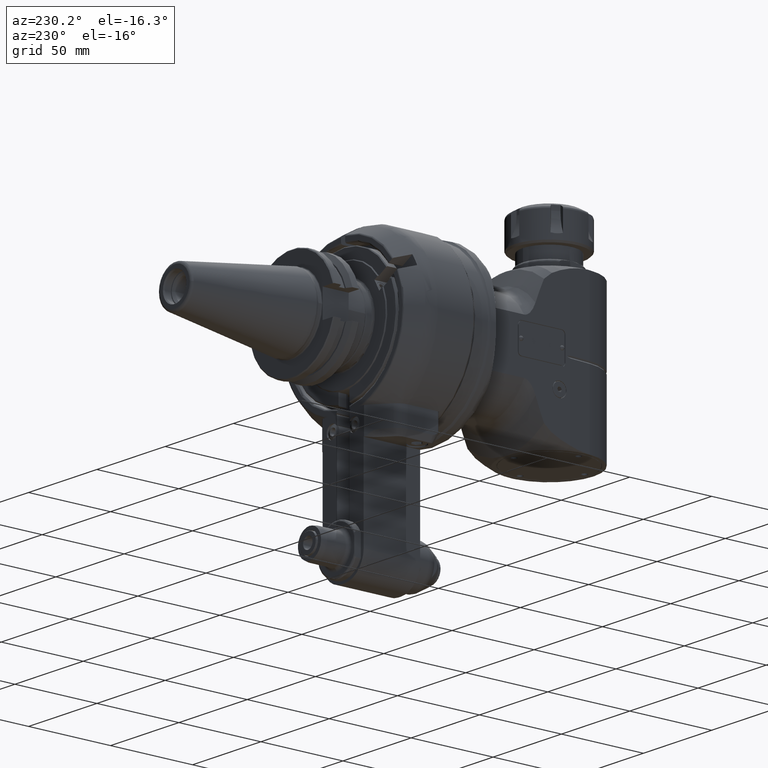
[diagram: clean part render]
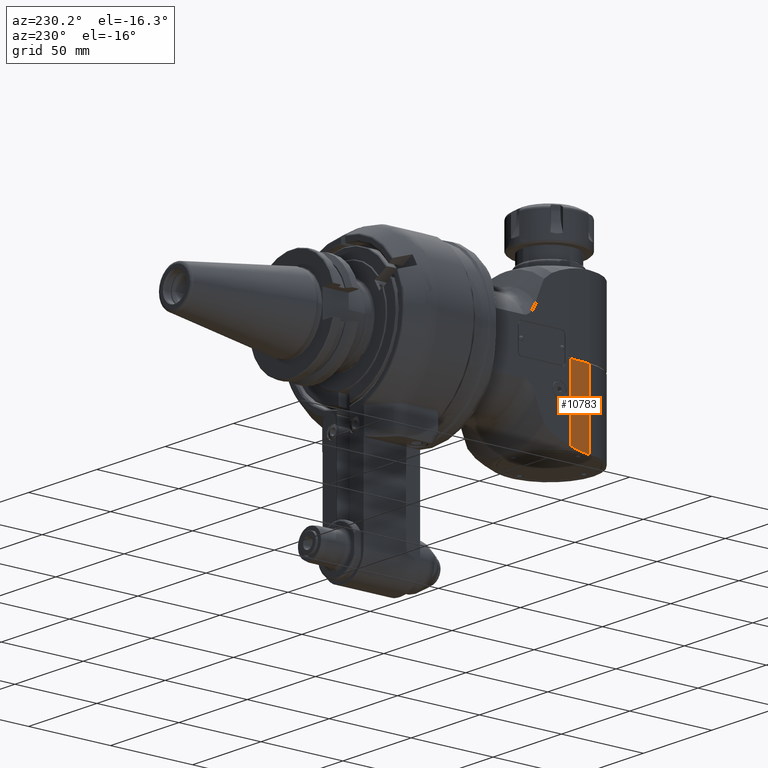
[diagram: same view with one face highlighted and labeled with its STEP entity id]
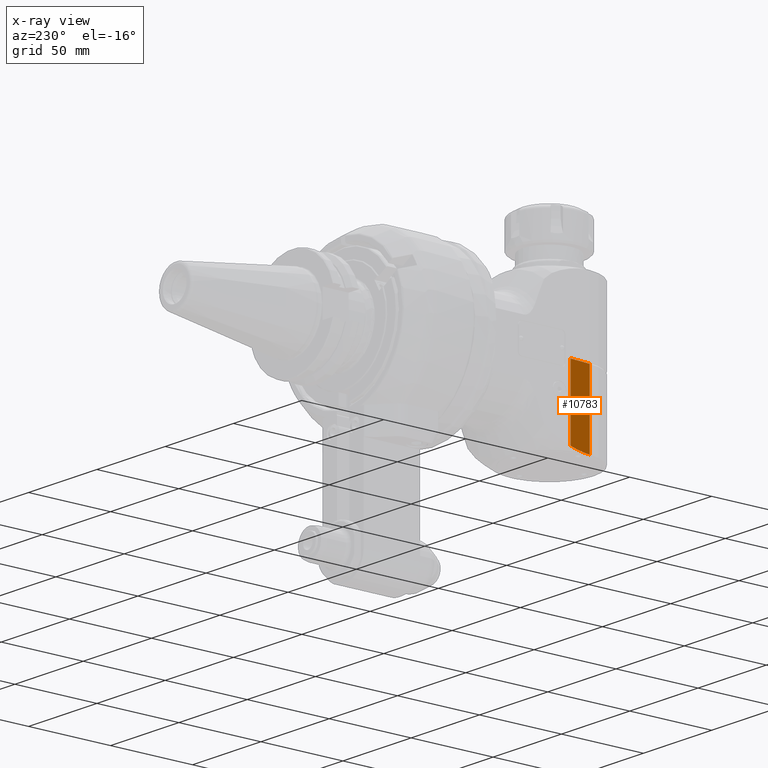
[diagram: x-ray of the same camera — body ghosted, the highlighted face saturated]
A machine part, auxiliary view. The second image highlights one B-rep face of the part: STEP entity #10783.
The next image is the same camera in x-ray: the body ghosted, the highlighted face saturated — about 0% of this face is hidden behind the body in this view.
In plain terms, the highlighted planar face has unit normal (0.9962, 0.0872, -0).
Its self-contained STEP definition (entity closure, byte-faithful):
#50=ELLIPSE('',#11967,1229.91832837149,85.833950453452);
#131=(
BOUNDED_CURVE()
B_SPLINE_CURVE(2,(#21566,#21567,#21568),.UNSPECIFIED.,.F.,.F.)
B_SPLINE_CURVE_WITH_KNOTS((3,3),(0.908279485826182,1.39299905732289),
 .UNSPECIFIED.)
CURVE()
GEOMETRIC_REPRESENTATION_ITEM()
RATIONAL_B_SPLINE_CURVE((1.00008213178146,1.00007235540741,1.00002875311479))
REPRESENTATION_ITEM('')
);
#1016=LINE('',#21484,#1706);
#1018=LINE('',#21560,#1708);
#1019=LINE('',#21564,#1709);
#1020=LINE('',#21570,#1710);
#1706=VECTOR('',#14730,1.97939553944791);
#1708=VECTOR('',#14738,11.9999999999997);
#1709=VECTOR('',#14741,42.6337666201003);
#1710=VECTOR('',#14744,44.33431457505);
#2342=PLANE('',#11965);
#2879=FACE_OUTER_BOUND('',#3595,.T.);
#3595=EDGE_LOOP('',(#9400,#9401,#9402,#9403,#9404,#9405,#9406));
#4266=CIRCLE('',#11966,12.0308902930349);
#5194=VERTEX_POINT('',#21482);
#5195=VERTEX_POINT('',#21483);
#5206=VERTEX_POINT('',#21558);
#5207=VERTEX_POINT('',#21559);
#5208=VERTEX_POINT('',#21561);
#5209=VERTEX_POINT('',#21563);
#5210=VERTEX_POINT('',#21565);
#6644=EDGE_CURVE('',#5194,#5195,#1016,.T.);
#6657=EDGE_CURVE('',#5206,#5207,#1018,.T.);
#6658=EDGE_CURVE('',#5207,#5208,#4266,.T.);
#6659=EDGE_CURVE('',#5208,#5209,#1019,.T.);
#6660=EDGE_CURVE('',#5210,#5209,#131,.T.);
#6661=EDGE_CURVE('',#5210,#5195,#50,.T.);
#6662=EDGE_CURVE('',#5206,#5194,#1020,.T.);
#9400=ORIENTED_EDGE('',*,*,#6657,.T.);
#9401=ORIENTED_EDGE('',*,*,#6658,.T.);
#9402=ORIENTED_EDGE('',*,*,#6659,.T.);
#9403=ORIENTED_EDGE('',*,*,#6660,.F.);
#9404=ORIENTED_EDGE('',*,*,#6661,.T.);
#9405=ORIENTED_EDGE('',*,*,#6644,.F.);
#9406=ORIENTED_EDGE('',*,*,#6662,.F.);
#10783=ADVANCED_FACE('',(#2879),#2342,.F.);
#11965=AXIS2_PLACEMENT_3D('',#21557,#14736,#14737);
#11966=AXIS2_PLACEMENT_3D('',#21562,#14739,#14740);
#11967=AXIS2_PLACEMENT_3D('',#21569,#14742,#14743);
#14730=DIRECTION('',(-0.996194698091747,0.,-0.0871557427476441));
#14736=DIRECTION('center_axis',(-0.087155742747664,0.,0.996194698091745));
#14737=DIRECTION('ref_axis',(-0.996194698091745,0.,-0.0871557427476639));
#14738=DIRECTION('',(-0.996194697052224,2.38543341376106E-8,-0.0871557546294421));
#14739=DIRECTION('center_axis',(-0.0871552308265658,1.31014310120443E-5,
0.996194742792754));
#14740=DIRECTION('ref_axis',(-0.0540633269987116,0.998526244180993,-0.00474303232446293));
#14741=DIRECTION('',(-1.18254196576499E-7,0.999999999999993,-8.79004707197494E-10));
#14742=DIRECTION('center_axis',(0.087155742747664,0.,-0.996194698091745));
#14743=DIRECTION('ref_axis',(-0.996194698091745,-2.72609445442401E-16,-0.0871557427476639));
#14744=DIRECTION('',(-2.628415704215E-14,1.,0.));
#21482=CARTESIAN_POINT('',(92.35320505418,45.,-26.89725684848));
#21483=CARTESIAN_POINT('',(90.38134171236,45.,-27.06977253691));
#21484=CARTESIAN_POINT('',(92.35320505419,45.,-26.89725684848));
#21557=CARTESIAN_POINT('Origin',(107.6642303492,-60.0000024,-25.55771570821));
#21558=CARTESIAN_POINT('',(92.35320505419,0.6656854249493,-26.89725684848));
#21559=CARTESIAN_POINT('',(80.3988686916399,0.665685687347152,-27.9431259277945));
#21560=CARTESIAN_POINT('',(92.35320505419,0.6656854249493,-26.89725684848));
#21561=CARTESIAN_POINT('',(79.7487916142378,0.647955160126924,-27.9999999146753));
#21562=CARTESIAN_POINT('Origin',(80.3992215615388,-11.3652046467353,-27.9429368797887));
#21563=CARTESIAN_POINT('',(79.7487867022404,43.2817206299215,-28.0000001818403));
#21564=CARTESIAN_POINT('',(79.74879163145,0.6479548681258,-27.9999999631));
#21565=CARTESIAN_POINT('',(84.3803469477152,44.3099027247191,-27.5947915480108));
#21566=CARTESIAN_POINT('Ctrl Pts',(84.3803469478057,44.3099027245801,-27.5947915486916));
#21567=CARTESIAN_POINT('Ctrl Pts',(82.0373834423253,43.794329961468,-27.7997742944761));
#21568=CARTESIAN_POINT('Ctrl Pts',(79.748786900299,43.2817198884143,-28.000000547288));
#21569=CARTESIAN_POINT('Origin',(1133.73687722345,-1.11022302462516E-14,
64.2120088473313));
#21570=CARTESIAN_POINT('',(92.35320505419,0.6656854249493,-26.89725684848));